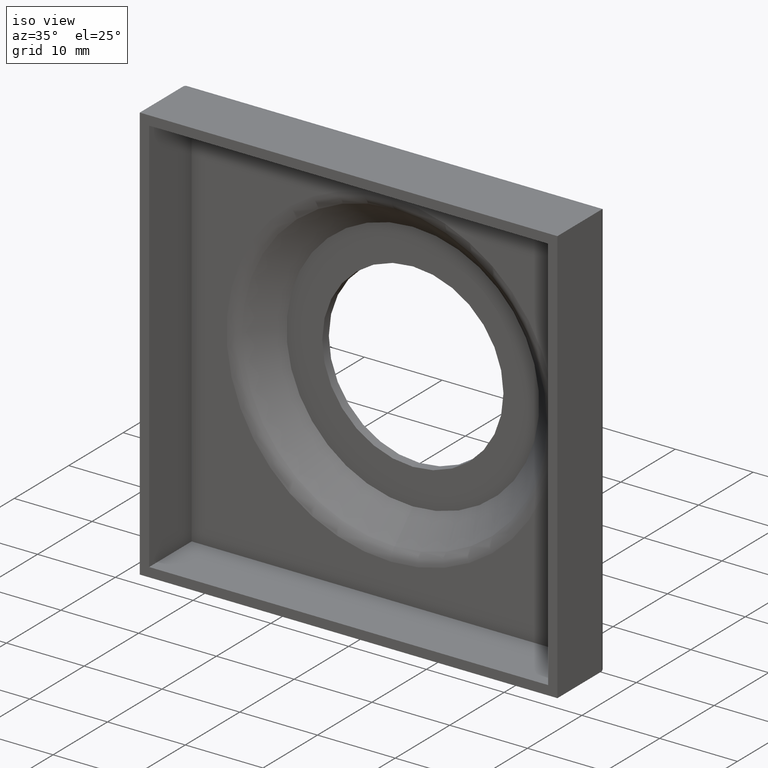
[diagram: clean part render]
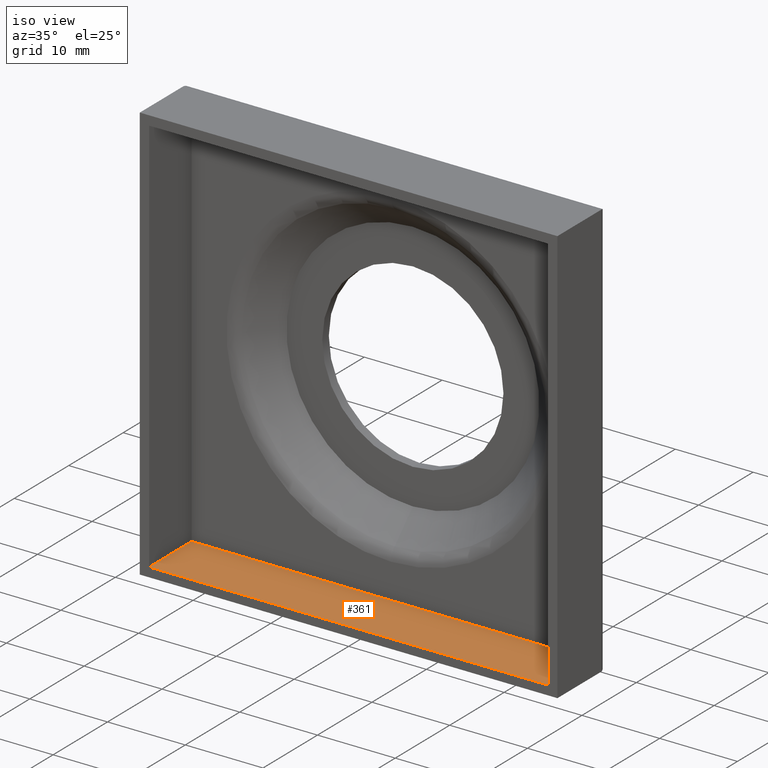
[diagram: same view with one face highlighted and labeled with its STEP entity id]
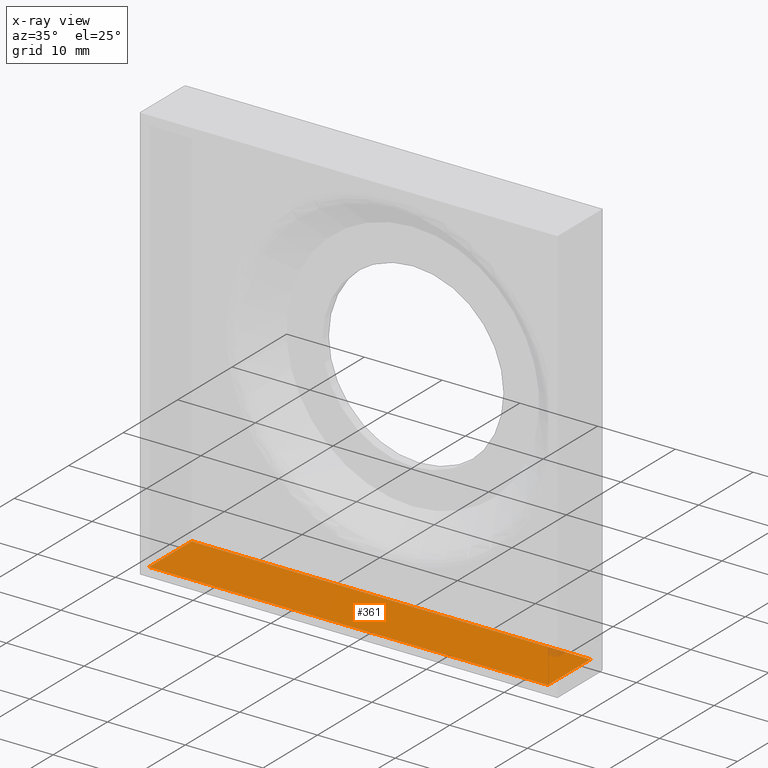
[diagram: x-ray of the same camera — body ghosted, the highlighted face saturated]
A machine part, iso view. The second image highlights one B-rep face of the part: STEP entity #361.
The next image is the same camera in x-ray: the body ghosted, the highlighted face saturated — about 1% of this face is hidden behind the body in this view.
In plain terms, the highlighted planar face has unit normal (0, 0, 1).
Its self-contained STEP definition (entity closure, byte-faithful):
#23 = CARTESIAN_POINT ( 'NONE',  ( 25.64999999999999900, 7.799999999999999800, -25.65000000000000600 ) ) ;
#34 = LINE ( 'NONE', #171, #745 ) ;
#54 = DIRECTION ( 'NONE',  ( -1.000000000000000000, 0.0000000000000000000, 0.0000000000000000000 ) ) ;
#57 = CARTESIAN_POINT ( 'NONE',  ( 0.0000000000000000000, -0.0000000000000000000, -25.65000000000000600 ) ) ;
#63 = FACE_OUTER_BOUND ( 'NONE', #443, .T. ) ;
#74 = ORIENTED_EDGE ( 'NONE', *, *, #580, .T. ) ;
#80 = EDGE_CURVE ( 'NONE', #373, #410, #128, .T. ) ;
#114 = DIRECTION ( 'NONE',  ( -0.0000000000000000000, -1.000000000000000000, 0.0000000000000000000 ) ) ;
#121 = VERTEX_POINT ( 'NONE', #568 ) ;
#128 = LINE ( 'NONE', #57, #154 ) ;
#154 = VECTOR ( 'NONE', #54, 1000.000000000000000 ) ;
#155 = VECTOR ( 'NONE', #114, 1000.000000000000000 ) ;
#171 = CARTESIAN_POINT ( 'NONE',  ( 25.64999999999999900, 9.000000000000000000, -25.65000000000000600 ) ) ;
#181 = AXIS2_PLACEMENT_3D ( 'NONE', #201, #770, #386 ) ;
#201 = CARTESIAN_POINT ( 'NONE',  ( -26.85000000000000500, 9.000000000000000000, -25.65000000000000600 ) ) ;
#210 = DIRECTION ( 'NONE',  ( 1.000000000000000000, 0.0000000000000000000, -0.0000000000000000000 ) ) ;
#322 = PLANE ( 'NONE',  #181 ) ;
#340 = ORIENTED_EDGE ( 'NONE', *, *, #80, .F. ) ;
#361 = ADVANCED_FACE ( 'NONE', ( #63 ), #322, .T. ) ;
#373 = VERTEX_POINT ( 'NONE', #710 ) ;
#386 = DIRECTION ( 'NONE',  ( 1.000000000000000000, 0.0000000000000000000, -0.0000000000000000000 ) ) ;
#387 = CARTESIAN_POINT ( 'NONE',  ( -26.85000000000000500, 7.799999999999999800, -25.65000000000000600 ) ) ;
#397 = CARTESIAN_POINT ( 'NONE',  ( -25.65000000000000600, 0.0000000000000000000, -25.65000000000000600 ) ) ;
#399 = EDGE_CURVE ( 'NONE', #121, #726, #474, .T. ) ;
#410 = VERTEX_POINT ( 'NONE', #397 ) ;
#443 = EDGE_LOOP ( 'NONE', ( #74, #340, #815, #703 ) ) ;
#474 = LINE ( 'NONE', #387, #722 ) ;
#493 = CARTESIAN_POINT ( 'NONE',  ( -25.65000000000000600, 9.000000000000000000, -25.65000000000000600 ) ) ;
#519 = LINE ( 'NONE', #493, #155 ) ;
#528 = EDGE_CURVE ( 'NONE', #726, #373, #34, .T. ) ;
#568 = CARTESIAN_POINT ( 'NONE',  ( -25.65000000000000600, 7.799999999999999800, -25.65000000000000600 ) ) ;
#580 = EDGE_CURVE ( 'NONE', #121, #410, #519, .T. ) ;
#703 = ORIENTED_EDGE ( 'NONE', *, *, #399, .F. ) ;
#710 = CARTESIAN_POINT ( 'NONE',  ( 25.64999999999999900, 0.0000000000000000000, -25.65000000000000600 ) ) ;
#722 = VECTOR ( 'NONE', #210, 1000.000000000000000 ) ;
#726 = VERTEX_POINT ( 'NONE', #23 ) ;
#737 = DIRECTION ( 'NONE',  ( 0.0000000000000000000, -1.000000000000000000, 0.0000000000000000000 ) ) ;
#745 = VECTOR ( 'NONE', #737, 1000.000000000000000 ) ;
#770 = DIRECTION ( 'NONE',  ( 0.0000000000000000000, 0.0000000000000000000, 1.000000000000000000 ) ) ;
#815 = ORIENTED_EDGE ( 'NONE', *, *, #528, .F. ) ;